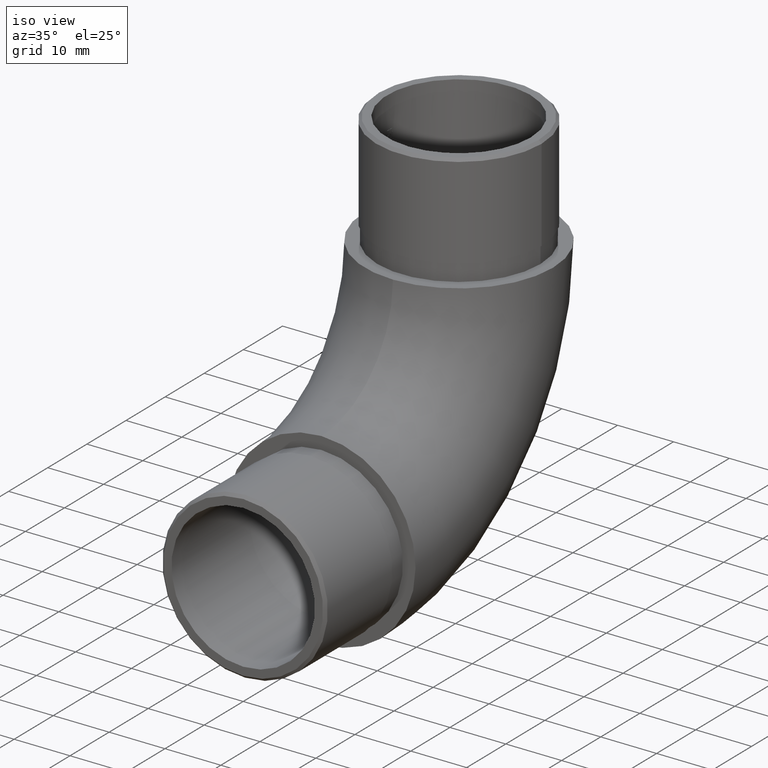
[diagram: clean part render]
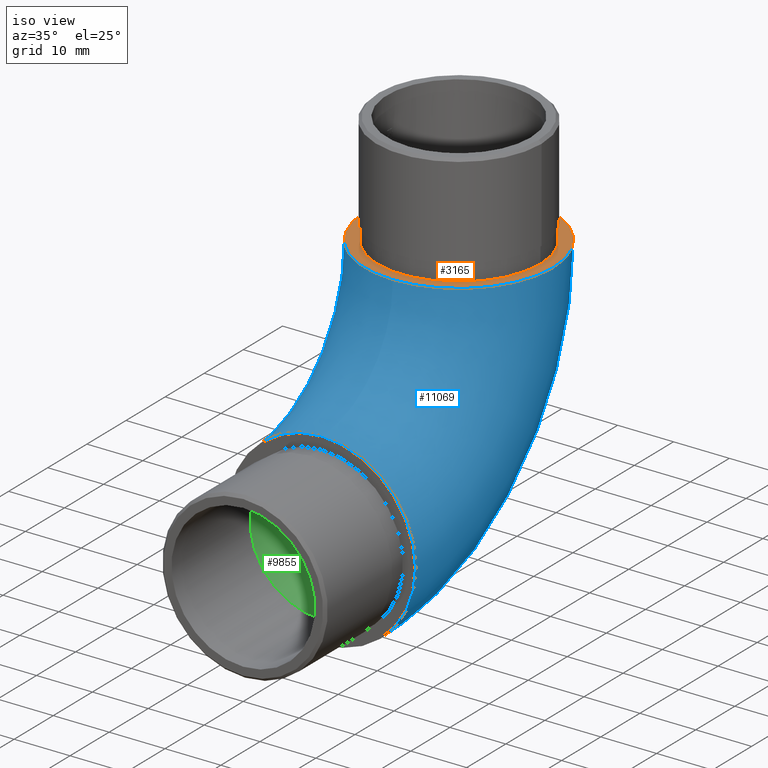
[diagram: same view with three faces highlighted in distinct colors, each labeled with its STEP entity id]
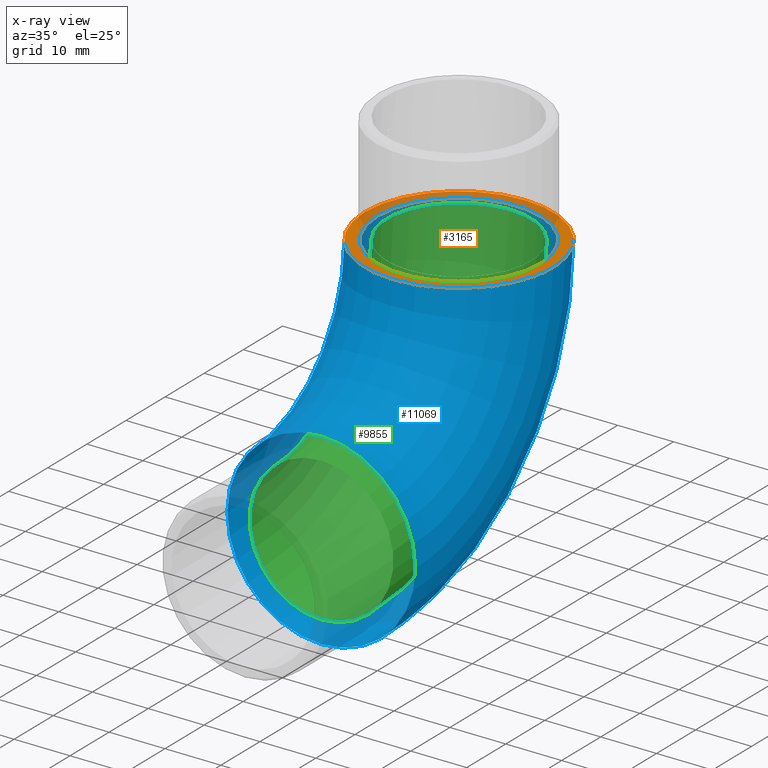
[diagram: x-ray of the same camera — body ghosted, the three highlighted faces saturated]
A machine part, iso view with three faces highlighted in distinct colors.
The next image is the same camera in x-ray (body ghosted, the three faces saturated) — at least one of them is partly hidden behind the body in this view.
Their STEP definitions:

[orange] entity #3165 — the highlighted planar face has unit normal (0, 0, 1).
#387 = DIRECTION ( 'NONE',  ( 0.0000000000000000000, 6.123233995736766000E-017, 1.000000000000000000 ) ) ;
#401 = AXIS2_PLACEMENT_3D ( 'NONE', #5658, #1310, #2194 ) ;
#1310 = DIRECTION ( 'NONE',  ( 0.0000000000000000000, 0.0000000000000000000, 1.000000000000000000 ) ) ;
#1323 = DIRECTION ( 'NONE',  ( 0.0000000000000000000, -1.000000000000000000, 6.123233995736766000E-017 ) ) ;
#2194 = DIRECTION ( 'NONE',  ( 1.000000000000000000, 0.0000000000000000000, 0.0000000000000000000 ) ) ;
#2447 = DIRECTION ( 'NONE',  ( 0.0000000000000000000, 6.123233995736766000E-017, 1.000000000000000000 ) ) ;
#2728 = VERTEX_POINT ( 'NONE', #4440 ) ;
#3165 = ADVANCED_FACE ( 'NONE', ( #4694, #7179 ), #3905, .T. ) ;
#3708 = EDGE_LOOP ( 'NONE', ( #4279 ) ) ;
#3829 = CIRCLE ( 'NONE', #5760, 16.85000000000000100 ) ;
#3905 = PLANE ( 'NONE',  #10341 ) ;
#4279 = ORIENTED_EDGE ( 'NONE', *, *, #9959, .T. ) ;
#4440 = CARTESIAN_POINT ( 'NONE',  ( 0.0000000000000000000, 18.29999999999998600, 52.00000000000000000 ) ) ;
#4492 = CIRCLE ( 'NONE', #401, 14.60000000000000100 ) ;
#4694 = FACE_OUTER_BOUND ( 'NONE', #3708, .T. ) ;
#4792 = CARTESIAN_POINT ( 'NONE',  ( 0.0000000000000000000, 35.14999999999998400, 52.00000000000000000 ) ) ;
#5658 = CARTESIAN_POINT ( 'NONE',  ( 0.0000000000000000000, 35.14999999999998400, 52.00000000000000000 ) ) ;
#5760 = AXIS2_PLACEMENT_3D ( 'NONE', #6022, #2447, #10243 ) ;
#6022 = CARTESIAN_POINT ( 'NONE',  ( 0.0000000000000000000, 35.14999999999998400, 52.00000000000000000 ) ) ;
#7179 = FACE_BOUND ( 'NONE', #7417, .T. ) ;
#7214 = CARTESIAN_POINT ( 'NONE',  ( 14.60000000000000100, 35.14999999999998400, 52.00000000000000000 ) ) ;
#7417 = EDGE_LOOP ( 'NONE', ( #9112 ) ) ;
#8882 = VERTEX_POINT ( 'NONE', #7214 ) ;
#9052 = EDGE_CURVE ( 'NONE', #8882, #8882, #4492, .T. ) ;
#9112 = ORIENTED_EDGE ( 'NONE', *, *, #9052, .F. ) ;
#9959 = EDGE_CURVE ( 'NONE', #2728, #2728, #3829, .T. ) ;
#10243 = DIRECTION ( 'NONE',  ( 0.0000000000000000000, -1.000000000000000000, 0.0000000000000000000 ) ) ;
#10341 = AXIS2_PLACEMENT_3D ( 'NONE', #4792, #387, #1323 ) ;

[blue] entity #11069 — the highlighted toroidal blend (fillet) surface has major radius 35.15 mm and minor (blend) radius 16.85 mm.
#2109 = CARTESIAN_POINT ( 'NONE',  ( 0.0000000000000000000, -6.938893903907228400E-015, 52.00000000000000000 ) ) ;
#2364 = EDGE_LOOP ( 'NONE', ( #9915 ) ) ;
#2447 = DIRECTION ( 'NONE',  ( 0.0000000000000000000, 6.123233995736766000E-017, 1.000000000000000000 ) ) ;
#2588 = TOROIDAL_SURFACE ( 'NONE', #3048, 35.14999999999999100, 16.85000000000000100 ) ;
#2728 = VERTEX_POINT ( 'NONE', #4440 ) ;
#3048 = AXIS2_PLACEMENT_3D ( 'NONE', #2109, #8234, #9162 ) ;
#3829 = CIRCLE ( 'NONE', #5760, 16.85000000000000100 ) ;
#4440 = CARTESIAN_POINT ( 'NONE',  ( 0.0000000000000000000, 18.29999999999998600, 52.00000000000000000 ) ) ;
#5760 = AXIS2_PLACEMENT_3D ( 'NONE', #6022, #2447, #10243 ) ;
#5954 = EDGE_LOOP ( 'NONE', ( #7727 ) ) ;
#6022 = CARTESIAN_POINT ( 'NONE',  ( 0.0000000000000000000, 35.14999999999998400, 52.00000000000000000 ) ) ;
#6113 = DIRECTION ( 'NONE',  ( 0.0000000000000000000, 1.000000000000000000, 0.0000000000000000000 ) ) ;
#6214 = AXIS2_PLACEMENT_3D ( 'NONE', #8711, #6113, #9653 ) ;
#6436 = FACE_OUTER_BOUND ( 'NONE', #2364, .T. ) ;
#6518 = EDGE_CURVE ( 'NONE', #7780, #7780, #7525, .T. ) ;
#6978 = CARTESIAN_POINT ( 'NONE',  ( 0.0000000000000000000, 0.0000000000000000000, 33.70000000000000300 ) ) ;
#7525 = CIRCLE ( 'NONE', #6214, 16.85000000000000100 ) ;
#7727 = ORIENTED_EDGE ( 'NONE', *, *, #9959, .F. ) ;
#7780 = VERTEX_POINT ( 'NONE', #6978 ) ;
#7791 = FACE_OUTER_BOUND ( 'NONE', #5954, .T. ) ;
#8234 = DIRECTION ( 'NONE',  ( -1.000000000000000000, -0.0000000000000000000, -0.0000000000000000000 ) ) ;
#8711 = CARTESIAN_POINT ( 'NONE',  ( 0.0000000000000000000, 0.0000000000000000000, 16.85000000000000100 ) ) ;
#9162 = DIRECTION ( 'NONE',  ( 0.0000000000000000000, 0.0000000000000000000, 1.000000000000000000 ) ) ;
#9653 = DIRECTION ( 'NONE',  ( 0.0000000000000000000, 0.0000000000000000000, 1.000000000000000000 ) ) ;
#9915 = ORIENTED_EDGE ( 'NONE', *, *, #6518, .T. ) ;
#9959 = EDGE_CURVE ( 'NONE', #2728, #2728, #3829, .T. ) ;
#10243 = DIRECTION ( 'NONE',  ( 0.0000000000000000000, -1.000000000000000000, 0.0000000000000000000 ) ) ;
#11069 = ADVANCED_FACE ( 'NONE', ( #7791, #6436 ), #2588, .T. ) ;

[green] entity #9855 — the highlighted toroidal blend (fillet) surface has major radius 35.15 mm and minor (blend) radius 12.85 mm.
#14 = EDGE_LOOP ( 'NONE', ( #3439 ) ) ;
#643 = FACE_OUTER_BOUND ( 'NONE', #14, .T. ) ;
#855 = CARTESIAN_POINT ( 'NONE',  ( 0.0000000000000000000, -6.938893903907228400E-015, 29.70000000000000300 ) ) ;
#1044 = EDGE_CURVE ( 'NONE', #1889, #1889, #3309, .T. ) ;
#1889 = VERTEX_POINT ( 'NONE', #855 ) ;
#2044 = FACE_OUTER_BOUND ( 'NONE', #5984, .T. ) ;
#2386 = AXIS2_PLACEMENT_3D ( 'NONE', #11163, #5979, #3368 ) ;
#2442 = VERTEX_POINT ( 'NONE', #2527 ) ;
#2527 = CARTESIAN_POINT ( 'NONE',  ( 0.0000000000000000000, 22.29999999999998600, 52.00000000000000000 ) ) ;
#3309 = CIRCLE ( 'NONE', #10768, 12.85000000000000000 ) ;
#3318 = ORIENTED_EDGE ( 'NONE', *, *, #1044, .F. ) ;
#3368 = DIRECTION ( 'NONE',  ( 0.0000000000000000000, 0.0000000000000000000, 1.000000000000000000 ) ) ;
#3439 = ORIENTED_EDGE ( 'NONE', *, *, #4881, .T. ) ;
#4249 = DIRECTION ( 'NONE',  ( 0.0000000000000000000, 1.000000000000000000, 0.0000000000000000000 ) ) ;
#4881 = EDGE_CURVE ( 'NONE', #2442, #2442, #5630, .T. ) ;
#5630 = CIRCLE ( 'NONE', #8022, 12.85000000000000000 ) ;
#5979 = DIRECTION ( 'NONE',  ( -1.000000000000000000, -0.0000000000000000000, -0.0000000000000000000 ) ) ;
#5984 = EDGE_LOOP ( 'NONE', ( #3318 ) ) ;
#6425 = DIRECTION ( 'NONE',  ( 0.0000000000000000000, 6.123233995736766000E-017, 1.000000000000000000 ) ) ;
#8022 = AXIS2_PLACEMENT_3D ( 'NONE', #9851, #6425, #8098 ) ;
#8098 = DIRECTION ( 'NONE',  ( 0.0000000000000000000, -1.000000000000000000, 0.0000000000000000000 ) ) ;
#8538 = DIRECTION ( 'NONE',  ( 0.0000000000000000000, 0.0000000000000000000, 1.000000000000000000 ) ) ;
#8756 = TOROIDAL_SURFACE ( 'NONE', #2386, 35.14999999999999100, 12.85000000000000000 ) ;
#9851 = CARTESIAN_POINT ( 'NONE',  ( 0.0000000000000000000, 35.14999999999998400, 52.00000000000000000 ) ) ;
#9855 = ADVANCED_FACE ( 'NONE', ( #643, #2044 ), #8756, .F. ) ;
#10393 = CARTESIAN_POINT ( 'NONE',  ( 0.0000000000000000000, -6.938893903907228400E-015, 16.85000000000000500 ) ) ;
#10768 = AXIS2_PLACEMENT_3D ( 'NONE', #10393, #4249, #8538 ) ;
#11163 = CARTESIAN_POINT ( 'NONE',  ( 0.0000000000000000000, -6.938893903907228400E-015, 52.00000000000000000 ) ) ;